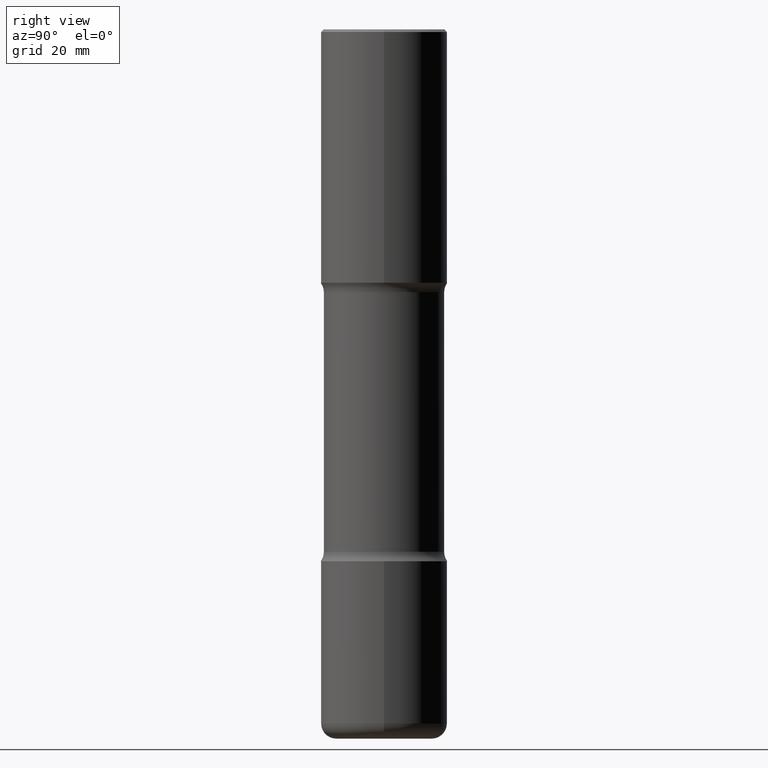
[diagram: clean part render]
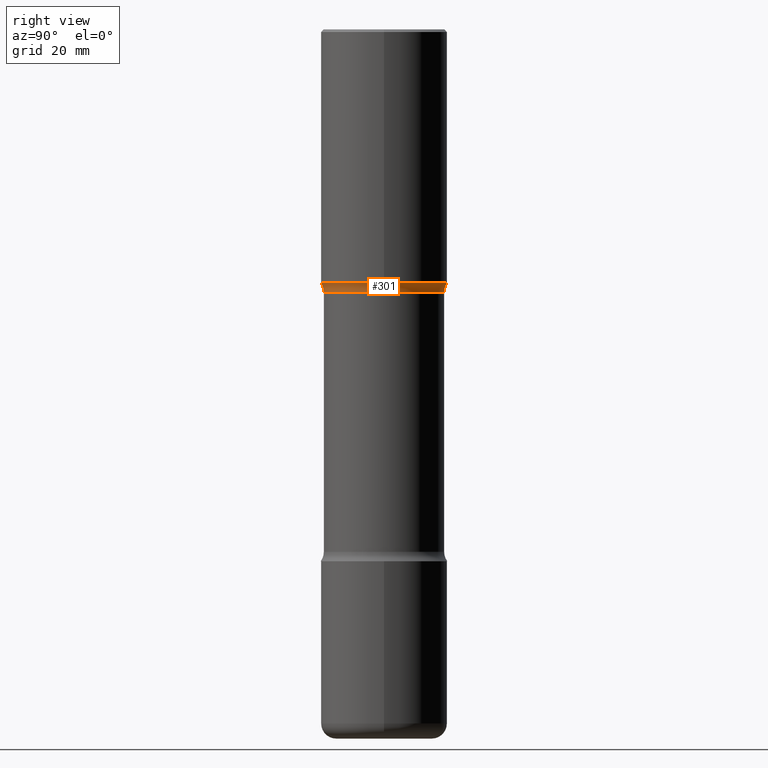
[diagram: same view with one face highlighted and labeled with its STEP entity id]
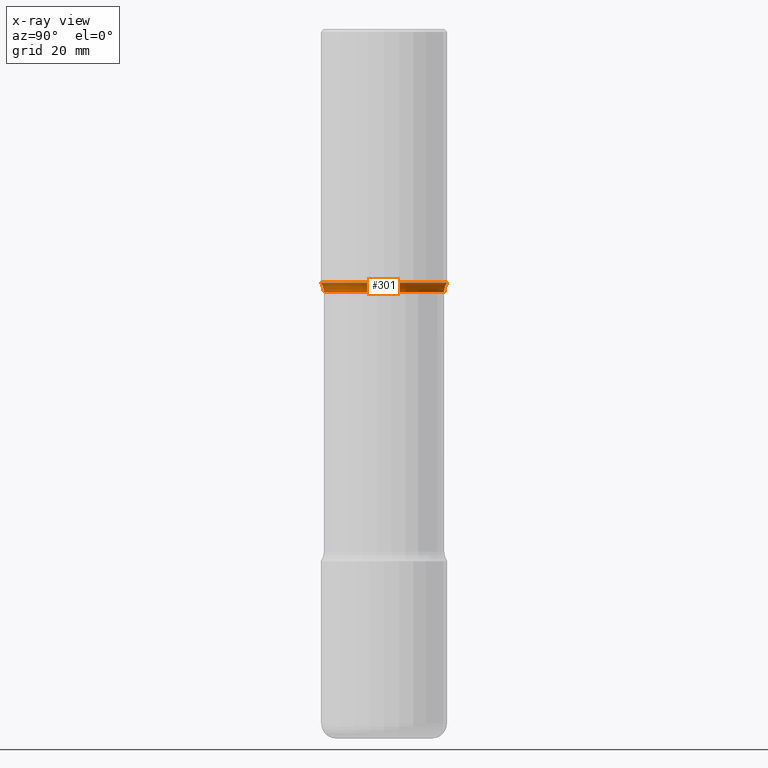
[diagram: x-ray of the same camera — body ghosted, the highlighted face saturated]
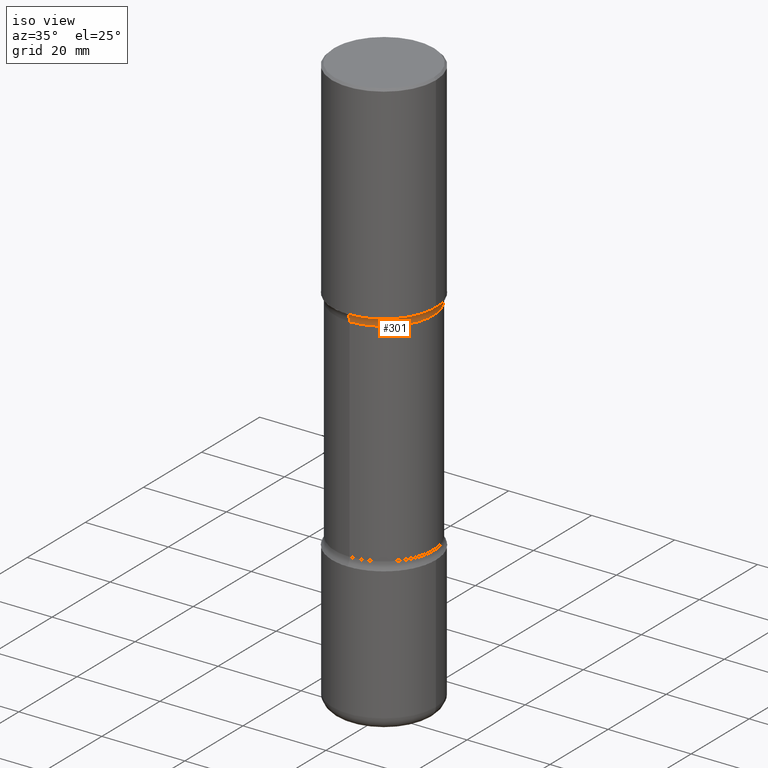
[diagram: same view with one face highlighted and labeled with its STEP entity id]
A machine part, right view. The second image highlights one B-rep face of the part: STEP entity #301.
The next image is the same camera in x-ray: the body ghosted, the highlighted face saturated — about 0% of this face is hidden behind the body in this view.
A second angle (iso view) of the same face is appended — the face is thin or edge-on in the first view.
In plain terms, the highlighted toroidal blend (fillet) surface has major radius 15.0495 mm and minor (blend) radius 3.175 mm.
Its self-contained STEP definition (entity closure, byte-faithful):
#4 = DIRECTION ( 'NONE',  ( -6.982962677686264344E-15, -1.000000000000000000, 0.000000000000000000 ) ) ;
#15 = EDGE_CURVE ( 'NONE', #538, #104, #389, .T. ) ;
#16 = DIRECTION ( 'NONE',  ( 6.982962677686265133E-15, 1.000000000000000000, -3.313480949505536246E-15 ) ) ;
#17 = VERTEX_POINT ( 'NONE', #548 ) ;
#40 = AXIS2_PLACEMENT_3D ( 'NONE', #153, #103, #156 ) ;
#45 = ORIENTED_EDGE ( 'NONE', *, *, #114, .T. ) ;
#55 = AXIS2_PLACEMENT_3D ( 'NONE', #437, #310, #4 ) ;
#65 = ORIENTED_EDGE ( 'NONE', *, *, #339, .F. ) ;
#98 = TOROIDAL_SURFACE ( 'NONE', #242, 0.5925000000000001377, 0.1250000000000000555 ) ;
#103 = DIRECTION ( 'NONE',  ( 2.569765813720951550E-29, -3.313480949505536246E-15, -1.000000000000000000 ) ) ;
#104 = VERTEX_POINT ( 'NONE', #404 ) ;
#106 = DIRECTION ( 'NONE',  ( 2.569765813720951550E-29, -3.313480949505536246E-15, -1.000000000000000000 ) ) ;
#108 = CIRCLE ( 'NONE', #40, 0.4675000000000001932 ) ;
#113 = ORIENTED_EDGE ( 'NONE', *, *, #15, .T. ) ;
#114 = EDGE_CURVE ( 'NONE', #17, #538, #232, .T. ) ;
#127 = DIRECTION ( 'NONE',  ( 2.569765813720951550E-29, -3.313480949505536246E-15, -1.000000000000000000 ) ) ;
#153 = CARTESIAN_POINT ( 'NONE',  ( 4.736292380389705471E-29, -7.505362474776508302E-15, -2.043031050576253893 ) ) ;
#156 = DIRECTION ( 'NONE',  ( 6.982962677686265133E-15, 1.000000000000000000, -3.506115072082475215E-15 ) ) ;
#165 = VERTEX_POINT ( 'NONE', #305 ) ;
#177 = ORIENTED_EDGE ( 'NONE', *, *, #330, .F. ) ;
#180 = CARTESIAN_POINT ( 'NONE',  ( 4.544765034558141024E-29, -7.258405258545457646E-15, -1.968500000000000139 ) ) ;
#232 = CIRCLE ( 'NONE', #55, 0.1250000000000001110 ) ;
#242 = AXIS2_PLACEMENT_3D ( 'NONE', #537, #106, #16 ) ;
#262 = AXIS2_PLACEMENT_3D ( 'NONE', #411, #370, #283 ) ;
#278 = AXIS2_PLACEMENT_3D ( 'NONE', #180, #127, #465 ) ;
#283 = DIRECTION ( 'NONE',  ( 6.860497997771527618E-15, 1.000000000000000000, 0.000000000000000000 ) ) ;
#301 = ADVANCED_FACE ( 'NONE', ( #453 ), #98, .F. ) ;
#305 = CARTESIAN_POINT ( 'NONE',  ( -3.291838451780682059E-15, -0.4675000000000077982, -2.043031050576252117 ) ) ;
#310 = DIRECTION ( 'NONE',  ( -1.000000000000000000, 6.982962677686265922E-15, -4.883557194083112340E-29 ) ) ;
#330 = EDGE_CURVE ( 'NONE', #17, #165, #108, .T. ) ;
#339 = EDGE_CURVE ( 'NONE', #165, #104, #505, .T. ) ;
#354 = CARTESIAN_POINT ( 'NONE',  ( 3.436665081823345080E-15, 0.4921499999999934261, -1.968500000000001693 ) ) ;
#370 = DIRECTION ( 'NONE',  ( 1.000000000000000000, -6.860497997771530774E-15, 4.842978755694635864E-29 ) ) ;
#378 = EDGE_LOOP ( 'NONE', ( #65, #177, #45, #113 ) ) ;
#389 = CIRCLE ( 'NONE', #278, 0.4921500000000005315 ) ;
#404 = CARTESIAN_POINT ( 'NONE',  ( -3.376394089603216847E-15, -0.4921500000000077479, -1.968499999999998362 ) ) ;
#411 = CARTESIAN_POINT ( 'NONE',  ( -4.064845063679585561E-15, -0.5925000000000075762, -2.043031050576252117 ) ) ;
#437 = CARTESIAN_POINT ( 'NONE',  ( 4.137405386529161462E-15, 0.5924999999999926992, -2.043031050576255669 ) ) ;
#453 = FACE_OUTER_BOUND ( 'NONE', #378, .T. ) ;
#465 = DIRECTION ( 'NONE',  ( 6.982962677686265922E-15, 1.000000000000000000, -3.330506545156062313E-15 ) ) ;
#505 = CIRCLE ( 'NONE', #262, 0.1250000000000001110 ) ;
#537 = CARTESIAN_POINT ( 'NONE',  ( 4.757713796991006473E-29, -7.474685786972130125E-15, -2.043031050576253893 ) ) ;
#538 = VERTEX_POINT ( 'NONE', #354 ) ;
#548 = CARTESIAN_POINT ( 'NONE',  ( 3.264535051818378123E-15, 0.4674999999999926992, -2.043031050576255669 ) ) ;